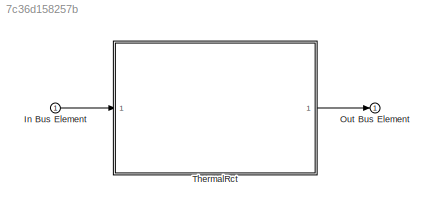
MODEL slx_7c36d158257b
KIND model
CONFIG AbsTol = auto
CONFIG EnableMultiTasking = off
CONFIG FixedStep = auto
CONFIG MaxStep = auto
CONFIG MinStep = auto
CONFIG RelTol = 1e-3
CONFIG SampleTimeConstraint = Unconstrained
CONFIG SolverName = FixedStepAuto
CONFIG StartTime = 0.0
CONFIG StopTime = 10.0
BLOCK [Inport] In Bus Element
BLOCK [Outport] Out Bus Element
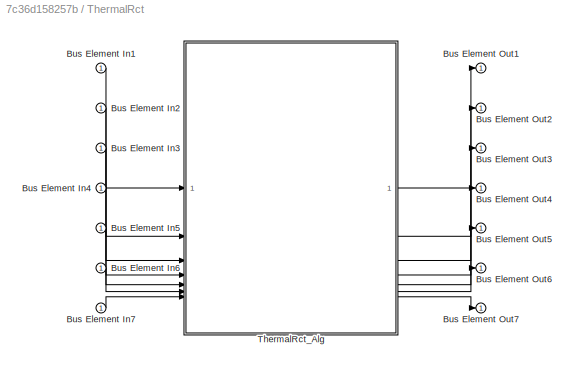
BLOCK [SubSystem] ThermalRct
BLOCK [Inport] ThermalRct/Bus Element In1
BLOCK [Inport] ThermalRct/Bus Element In2
BLOCK [Inport] ThermalRct/Bus Element In3
BLOCK [Inport] ThermalRct/Bus Element In4
BLOCK [Inport] ThermalRct/Bus Element In5
BLOCK [Inport] ThermalRct/Bus Element In6
BLOCK [Inport] ThermalRct/Bus Element In7
BLOCK [Outport] ThermalRct/Bus Element Out1
BLOCK [Outport] ThermalRct/Bus Element Out2
BLOCK [Outport] ThermalRct/Bus Element Out3
BLOCK [Outport] ThermalRct/Bus Element Out4
BLOCK [Outport] ThermalRct/Bus Element Out5
BLOCK [Outport] ThermalRct/Bus Element Out6
BLOCK [Outport] ThermalRct/Bus Element Out7
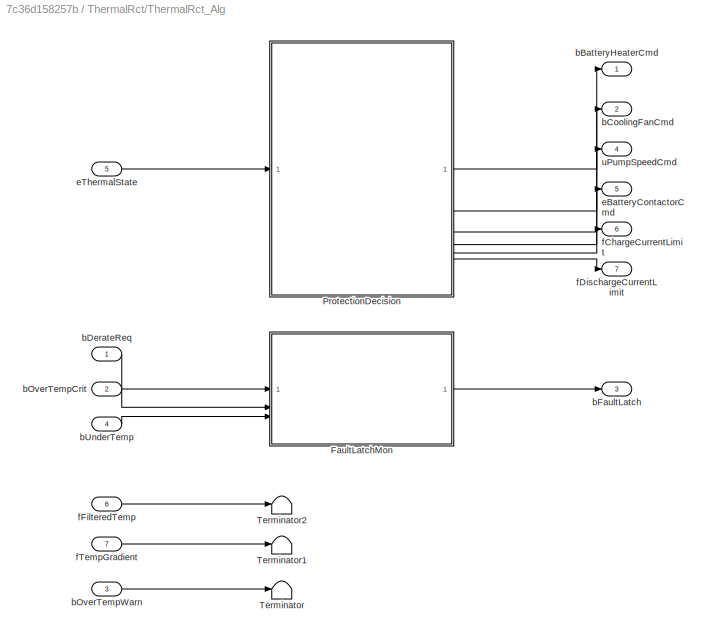
BLOCK [SubSystem] ThermalRct/ThermalRct_Alg
  RTWFcnNameOpts = Use subsystem name
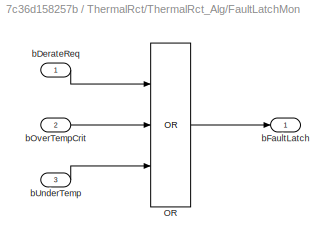
BLOCK [SubSystem] ThermalRct/ThermalRct_Alg/FaultLatchMon
  RTWFcnNameOpts = Use subsystem name
  RTWSystemCode = Nonreusable function
  TreatAsAtomicUnit = on
BLOCK [Logic] ThermalRct/ThermalRct_Alg/FaultLatchMon/OR
  AllPortsSameDT = off
  Inputs = 3
  Operator = OR
  OutDataTypeStr = boolean
BLOCK [Inport] ThermalRct/ThermalRct_Alg/FaultLatchMon/bDerateReq
BLOCK [Outport] ThermalRct/ThermalRct_Alg/FaultLatchMon/bFaultLatch
BLOCK [Inport] ThermalRct/ThermalRct_Alg/FaultLatchMon/bOverTempCrit
  Port = 2
BLOCK [Inport] ThermalRct/ThermalRct_Alg/FaultLatchMon/bUnderTemp
  Port = 3
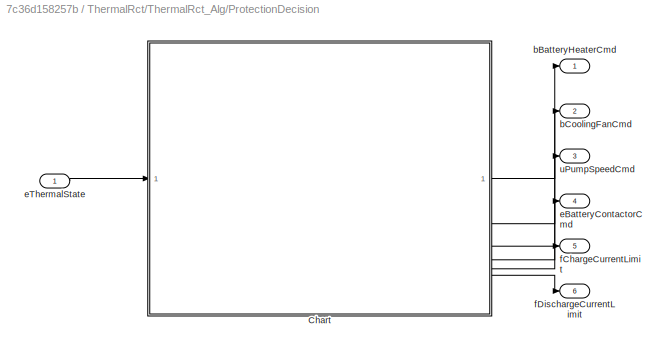
BLOCK [SubSystem] ThermalRct/ThermalRct_Alg/ProtectionDecision
  RTWFcnNameOpts = Use subsystem name
  RTWSystemCode = Nonreusable function
  TreatAsAtomicUnit = on
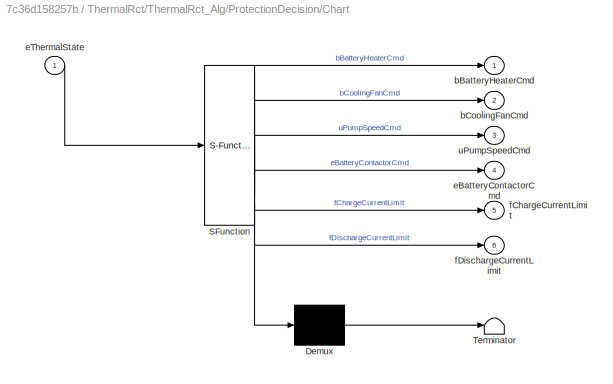
BLOCK [SubSystem] ThermalRct/ThermalRct_Alg/ProtectionDecision/Chart
  ErrorFcn = Stateflow.Translate.translate
  PermitHierarchicalResolution = ExplicitOnly
  SFBlockType = Chart
  TreatAsAtomicUnit = on
BLOCK [Demux] ThermalRct/ThermalRct_Alg/ProtectionDecision/Chart/ Demux 
  Outputs = 1
BLOCK [S-Function] ThermalRct/ThermalRct_Alg/ProtectionDecision/Chart/ SFunction 
  EnableBusSupport = on
  FunctionName = sf_sfun
  Parameters = TRCT_CHG_NORMAL,TRCT_CHG_OFF,TRCT_CHG_OVERHEAT,TRCT_CHG_UNDER_TEMP,TRCT_CHG_WARNING,TRCT_DISCHG_NORMAL,TRCT_DISCHG_OFF,TRCT_DISCHG_OVERHEAT,TRCT_DISCHG_WARNING,TRCT_PUMP_MAX,TRCT_PUMP_MEDIUM,TRCT_PUMP_OFF
  PortCounts = [1 7]
  SFcnIsStateOwnerBlock = off
  SFunctionDeploymentMode = off
  Tag = Stateflow S-Function 3
BLOCK [Terminator] ThermalRct/ThermalRct_Alg/ProtectionDecision/Chart/ Terminator 
BLOCK [Outport] ThermalRct/ThermalRct_Alg/ProtectionDecision/Chart/bBatteryHeaterCmd
BLOCK [Outport] ThermalRct/ThermalRct_Alg/ProtectionDecision/Chart/bCoolingFanCmd
  Port = 2
BLOCK [Outport] ThermalRct/ThermalRct_Alg/ProtectionDecision/Chart/eBatteryContactorCmd
  Port = 4
BLOCK [Inport] ThermalRct/ThermalRct_Alg/ProtectionDecision/Chart/eThermalState
BLOCK [Outport] ThermalRct/ThermalRct_Alg/ProtectionDecision/Chart/fChargeCurrentLimit
  Port = 5
BLOCK [Outport] ThermalRct/ThermalRct_Alg/ProtectionDecision/Chart/fDischargeCurrentLimit
  Port = 6
BLOCK [Outport] ThermalRct/ThermalRct_Alg/ProtectionDecision/Chart/uPumpSpeedCmd
  Port = 3
BLOCK [Outport] ThermalRct/ThermalRct_Alg/ProtectionDecision/bBatteryHeaterCmd
  OutDataTypeStr = boolean
BLOCK [Outport] ThermalRct/ThermalRct_Alg/ProtectionDecision/bCoolingFanCmd
  OutDataTypeStr = boolean
  Port = 2
BLOCK [Outport] ThermalRct/ThermalRct_Alg/ProtectionDecision/eBatteryContactorCmd
  OutDataTypeStr = Enum: ContactorCmd_e
  Port = 4
BLOCK [Inport] ThermalRct/ThermalRct_Alg/ProtectionDecision/eThermalState
  OutDataTypeStr = Enum: ThermalState_e
BLOCK [Outport] ThermalRct/ThermalRct_Alg/ProtectionDecision/fChargeCurrentLimit
  OutDataTypeStr = single
  Port = 5
BLOCK [Outport] ThermalRct/ThermalRct_Alg/ProtectionDecision/fDischargeCurrentLimit
  OutDataTypeStr = single
  Port = 6
BLOCK [Outport] ThermalRct/ThermalRct_Alg/ProtectionDecision/uPumpSpeedCmd
  OutDataTypeStr = uint16
  Port = 3
BLOCK [Terminator] ThermalRct/ThermalRct_Alg/Terminator
BLOCK [Terminator] ThermalRct/ThermalRct_Alg/Terminator1
BLOCK [Terminator] ThermalRct/ThermalRct_Alg/Terminator2
BLOCK [Outport] ThermalRct/ThermalRct_Alg/bBatteryHeaterCmd
BLOCK [Outport] ThermalRct/ThermalRct_Alg/bCoolingFanCmd
  Port = 2
BLOCK [Inport] ThermalRct/ThermalRct_Alg/bDerateReq
BLOCK [Outport] ThermalRct/ThermalRct_Alg/bFaultLatch
  Port = 3
BLOCK [Inport] ThermalRct/ThermalRct_Alg/bOverTempCrit
  Port = 2
BLOCK [Inport] ThermalRct/ThermalRct_Alg/bOverTempWarn
  Port = 3
BLOCK [Inport] ThermalRct/ThermalRct_Alg/bUnderTemp
  Port = 4
BLOCK [Outport] ThermalRct/ThermalRct_Alg/eBatteryContactorCmd
  Port = 5
BLOCK [Inport] ThermalRct/ThermalRct_Alg/eThermalState
  Port = 5
BLOCK [Outport] ThermalRct/ThermalRct_Alg/fChargeCurrentLimit
  Port = 6
BLOCK [Outport] ThermalRct/ThermalRct_Alg/fDischargeCurrentLimit
  Port = 7
BLOCK [Inport] ThermalRct/ThermalRct_Alg/fFilteredTemp
  Port = 6
BLOCK [Inport] ThermalRct/ThermalRct_Alg/fTempGradient
  Port = 7
BLOCK [Outport] ThermalRct/ThermalRct_Alg/uPumpSpeedCmd
  Port = 4
LINE In Bus Element:1 -> ThermalRct:1
LINE ThermalRct/Bus Element In1:1 -> ThermalRct/ThermalRct_Alg:1
LINE ThermalRct/Bus Element In2:1 -> ThermalRct/ThermalRct_Alg:2
LINE ThermalRct/Bus Element In3:1 -> ThermalRct/ThermalRct_Alg:3
LINE ThermalRct/Bus Element In4:1 -> ThermalRct/ThermalRct_Alg:4
LINE ThermalRct/Bus Element In5:1 -> ThermalRct/ThermalRct_Alg:5
LINE ThermalRct/Bus Element In6:1 -> ThermalRct/ThermalRct_Alg:6
LINE ThermalRct/Bus Element In7:1 -> ThermalRct/ThermalRct_Alg:7
LINE ThermalRct/ThermalRct_Alg/FaultLatchMon/OR:1 -> ThermalRct/ThermalRct_Alg/FaultLatchMon/bFaultLatch:1
LINE ThermalRct/ThermalRct_Alg/FaultLatchMon/bDerateReq:1 -> ThermalRct/ThermalRct_Alg/FaultLatchMon/OR:1
LINE ThermalRct/ThermalRct_Alg/FaultLatchMon/bOverTempCrit:1 -> ThermalRct/ThermalRct_Alg/FaultLatchMon/OR:2
LINE ThermalRct/ThermalRct_Alg/FaultLatchMon/bUnderTemp:1 -> ThermalRct/ThermalRct_Alg/FaultLatchMon/OR:3
LINE ThermalRct/ThermalRct_Alg/FaultLatchMon:1 -> ThermalRct/ThermalRct_Alg/bFaultLatch:1
LINE ThermalRct/ThermalRct_Alg/ProtectionDecision/Chart:1 -> ThermalRct/ThermalRct_Alg/ProtectionDecision/bBatteryHeaterCmd:1
LINE ThermalRct/ThermalRct_Alg/ProtectionDecision/Chart:2 -> ThermalRct/ThermalRct_Alg/ProtectionDecision/bCoolingFanCmd:1
LINE ThermalRct/ThermalRct_Alg/ProtectionDecision/Chart:3 -> ThermalRct/ThermalRct_Alg/ProtectionDecision/uPumpSpeedCmd:1
LINE ThermalRct/ThermalRct_Alg/ProtectionDecision/Chart:4 -> ThermalRct/ThermalRct_Alg/ProtectionDecision/eBatteryContactorCmd:1
LINE ThermalRct/ThermalRct_Alg/ProtectionDecision/Chart:5 -> ThermalRct/ThermalRct_Alg/ProtectionDecision/fChargeCurrentLimit:1
LINE ThermalRct/ThermalRct_Alg/ProtectionDecision/Chart:6 -> ThermalRct/ThermalRct_Alg/ProtectionDecision/fDischargeCurrentLimit:1
LINE ThermalRct/ThermalRct_Alg/ProtectionDecision/eThermalState:1 -> ThermalRct/ThermalRct_Alg/ProtectionDecision/Chart:1
LINE ThermalRct/ThermalRct_Alg/ProtectionDecision:1 -> ThermalRct/ThermalRct_Alg/bBatteryHeaterCmd:1
LINE ThermalRct/ThermalRct_Alg/ProtectionDecision:2 -> ThermalRct/ThermalRct_Alg/bCoolingFanCmd:1
LINE ThermalRct/ThermalRct_Alg/ProtectionDecision:3 -> ThermalRct/ThermalRct_Alg/uPumpSpeedCmd:1
LINE ThermalRct/ThermalRct_Alg/ProtectionDecision:4 -> ThermalRct/ThermalRct_Alg/eBatteryContactorCmd:1
LINE ThermalRct/ThermalRct_Alg/ProtectionDecision:5 -> ThermalRct/ThermalRct_Alg/fChargeCurrentLimit:1
LINE ThermalRct/ThermalRct_Alg/ProtectionDecision:6 -> ThermalRct/ThermalRct_Alg/fDischargeCurrentLimit:1
LINE ThermalRct/ThermalRct_Alg/bDerateReq:1 -> ThermalRct/ThermalRct_Alg/FaultLatchMon:1
LINE ThermalRct/ThermalRct_Alg/bOverTempCrit:1 -> ThermalRct/ThermalRct_Alg/FaultLatchMon:2
LINE ThermalRct/ThermalRct_Alg/bOverTempWarn:1 -> ThermalRct/ThermalRct_Alg/Terminator:1
LINE ThermalRct/ThermalRct_Alg/bUnderTemp:1 -> ThermalRct/ThermalRct_Alg/FaultLatchMon:3
LINE ThermalRct/ThermalRct_Alg/eThermalState:1 -> ThermalRct/ThermalRct_Alg/ProtectionDecision:1
LINE ThermalRct/ThermalRct_Alg/fFilteredTemp:1 -> ThermalRct/ThermalRct_Alg/Terminator2:1
LINE ThermalRct/ThermalRct_Alg/fTempGradient:1 -> ThermalRct/ThermalRct_Alg/Terminator1:1
LINE ThermalRct/ThermalRct_Alg:1 -> ThermalRct/Bus Element Out1:1
LINE ThermalRct/ThermalRct_Alg:2 -> ThermalRct/Bus Element Out2:1
LINE ThermalRct/ThermalRct_Alg:3 -> ThermalRct/Bus Element Out3:1
LINE ThermalRct/ThermalRct_Alg:4 -> ThermalRct/Bus Element Out4:1
LINE ThermalRct/ThermalRct_Alg:5 -> ThermalRct/Bus Element Out5:1
LINE ThermalRct/ThermalRct_Alg:6 -> ThermalRct/Bus Element Out6:1
LINE ThermalRct/ThermalRct_Alg:7 -> ThermalRct/Bus Element Out7:1
LINE ThermalRct:1 -> Out Bus Element:1
CHART ThermalRct/ThermalRct_Alg/ProtectionDecision/Chart states=5 transitions=9
  STATE_LABEL 'NORMAL\nentry:\nbBatteryHeaterCmd = false;\nbCoolingFanCmd = false;\nuPumpSpeedCmd = TRCT_PUMP_OFF;\neBatteryContactorCmd = ContactorCmd_e.CONTACTOR_CLOSE;\nfChargeCurrentLimit = TRCT_CHG_NORMAL;\nfDischargeCurrentLimit = TRCT_DISCHG_NORMAL;'
  STATE_LABEL 'UNDER_TEMP\nentry:\nbBatteryHeaterCmd = true;\nbCoolingFanCmd = false;\nuPumpSpeedCmd = TRCT_PUMP_OFF;\neBatteryContactorCmd = ContactorCmd_e.CONTACTOR_CLOSE;\nfChargeCurrentLimit = TRCT_CHG_UNDER_TEMP;\nfDischargeCurrentLimit = TRCT_DISCHG_NORMAL;\n'
  STATE_LABEL 'OVERHEAT\nentry:\nbBatteryHeaterCmd = false;\nbCoolingFanCmd = true;\nuPumpSpeedCmd = TRCT_PUMP_MAX;\neBatteryContactorCmd = ContactorCmd_e.CONTACTOR_CLOSE;\nfChargeCurrentLimit = TRCT_CHG_OVERHEAT;\nfDischargeCurrentLimit = TRCT_DISCHG_OVERHEAT;\n'
  STATE_LABEL 'CRITICAL\nentry:\nbBatteryHeaterCmd = false;\nbCoolingFanCmd = true;\nuPumpSpeedCmd = TRCT_PUMP_MAX;\neBatteryContactorCmd = ContactorCmd_e.CONTACTOR_OPEN;\nfChargeCurrentLimit = TRCT_CHG_OFF;\nfDischargeCurrentLimit = TRCT_DISCHG_OFF;\n'
  STATE_LABEL 'WARNING\nentry:\nbBatteryHeaterCmd = false;\nbCoolingFanCmd = true;\nuPumpSpeedCmd = TRCT_PUMP_MEDIUM;\neBatteryContactorCmd = ContactorCmd_e.CONTACTOR_CLOSE;\nfChargeCurrentLimit = TRCT_CHG_WARNING;\nfDischargeCurrentLimit = TRCT_DISCHG_WARNING;\n'
CHART  states=0 transitions=0
